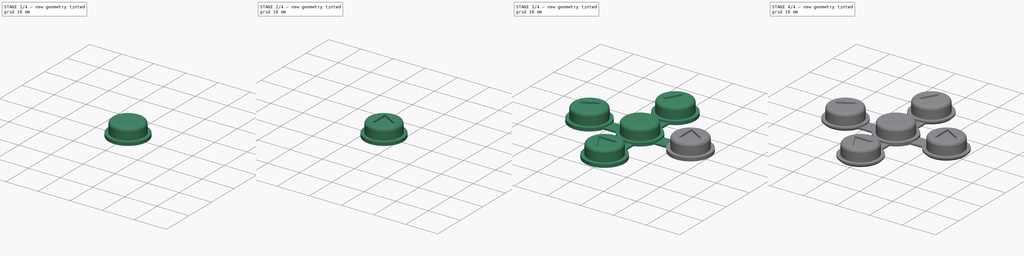
[diagram: build sequence overview — one tinted view per stage of 4, left to right]
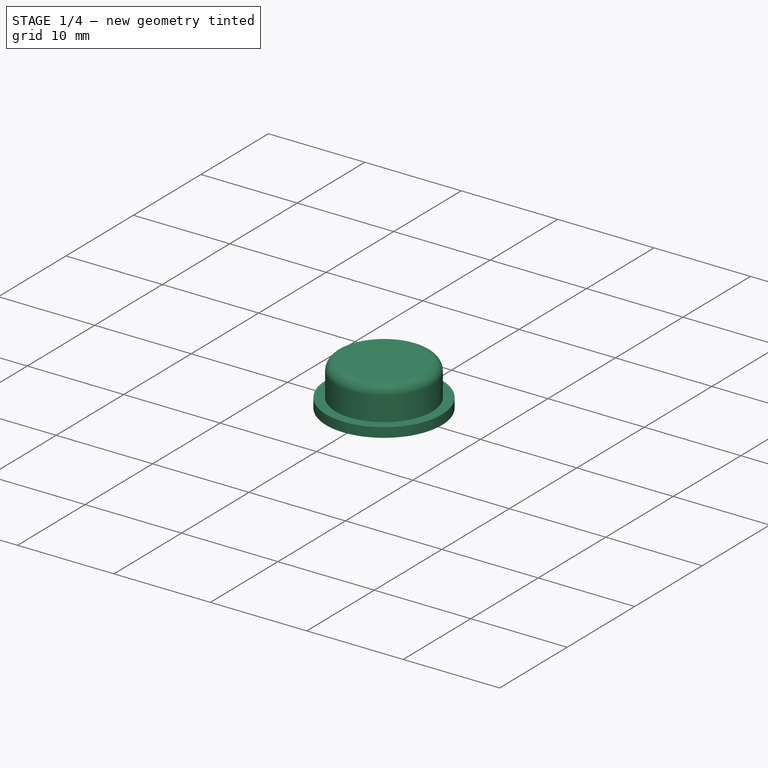
[diagram: stage 1 of 4 — iso view after this stage's code; geometry added in this stage tinted green]
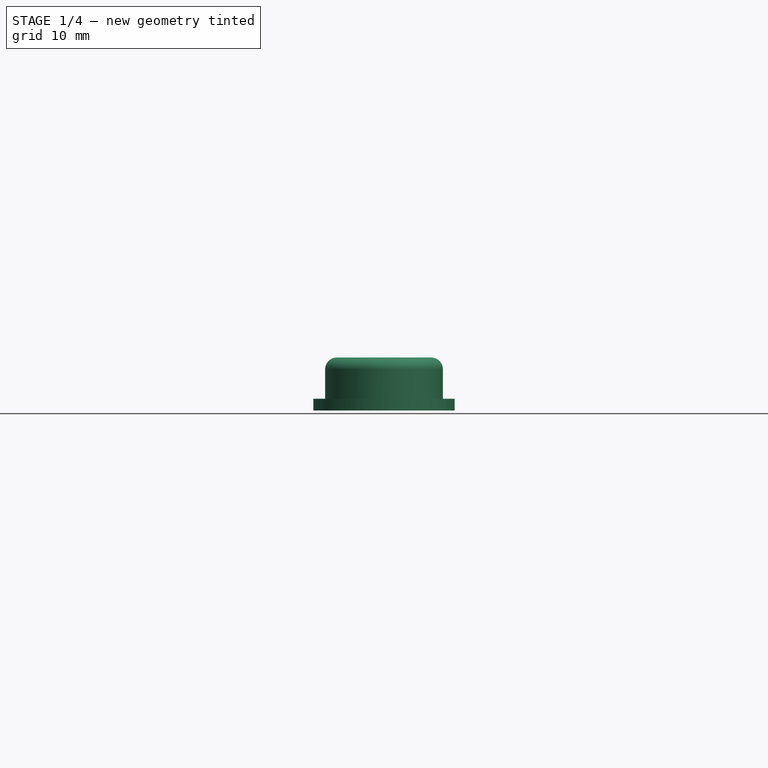
[diagram: stage 1 of 4 — front view after this stage's code; geometry added in this stage tinted green]
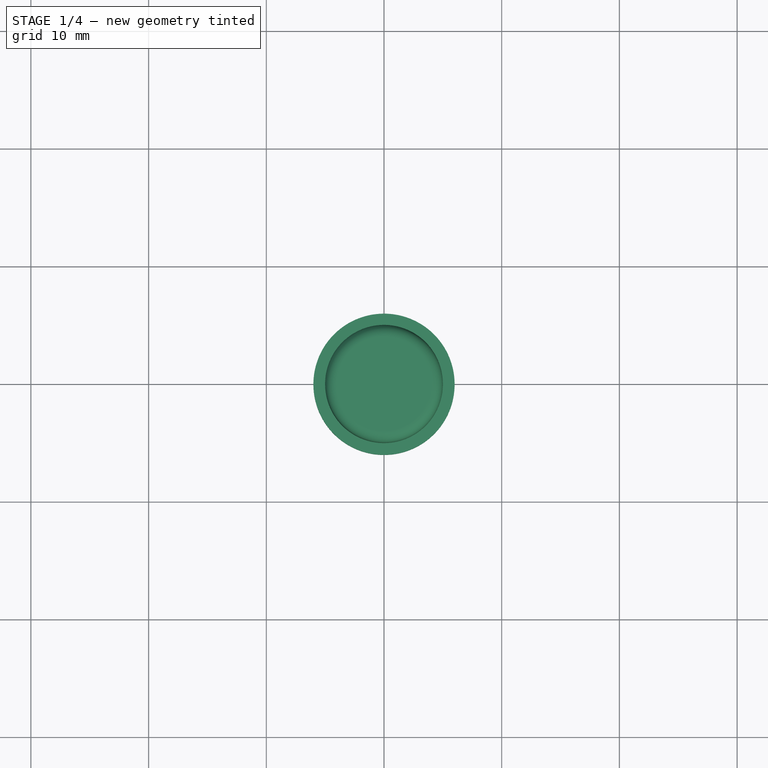
[diagram: stage 1 of 4 — top view after this stage's code; geometry added in this stage tinted green]
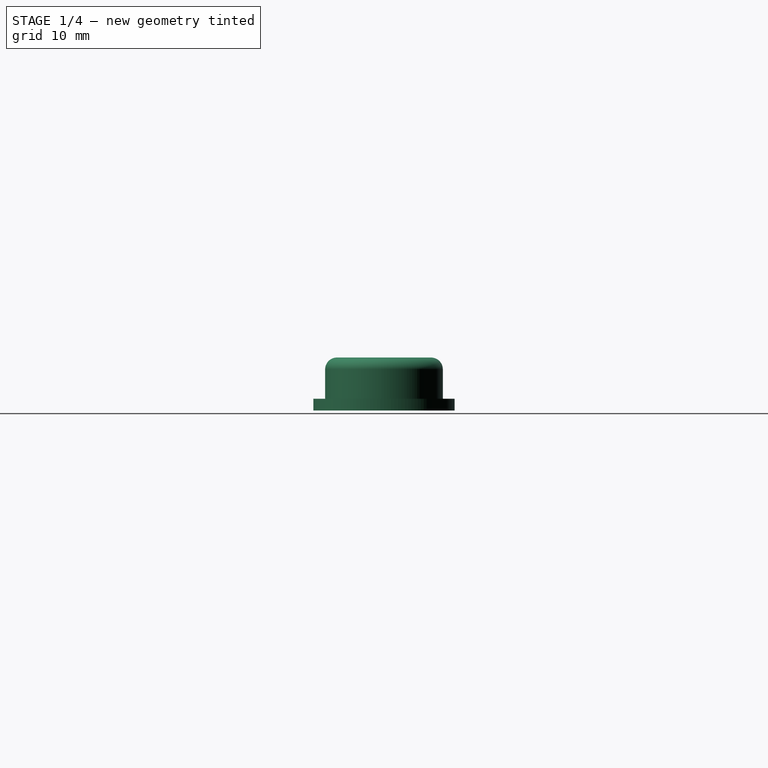
[diagram: stage 1 of 4 — right view after this stage's code; geometry added in this stage tinted green]
FCSTD DOCUMENT  (FreeCAD 0.14R3692 (Git))
Label: keypad-buttons
License: The MIT License
LicenseURL: http://opensource.org/licenses/MIT
objects: Part::FeaturePython×4, Part::Cylinder×2, Part::Box×2, Part::MultiFuse×2, Part::Feature×1, Part::Fillet×1, Sketcher::SketchObject×1, PartDesign::Pocket×1, Part::Chamfer×1
note: 16 computed .brp shape members not serialized (recipe doc carries the construction recipe); baked Part::Feature solids carry a one-line shape summary decoded from their .brp

FEATURE [Part::Feature] Part__Feature  label="keypad-case"
  shape: bbox 50.26 x 47.72 x 10 mm, 56 faces (baked)
FEATURE [Part::Cylinder] Cylinder  label="button-body-cylinder"
  Angle = 360
  Height = 4.5
  Placement = pos=(0,0,8) rot=(0,0,1;0rad)
  Radius = 5
FEATURE [Part::Cylinder] Cylinder001  label="button-base-cylinder"
  Angle = 360
  Height = 1
  Placement = pos=(0,0,8) rot=(0,0,1;0rad)
  Radius = 6
FEATURE [Part::Fillet] Fillet  label="button-body-fillet"
  Base = -> Cylinder
  Edges = 1 edges r=1: [Edge1]
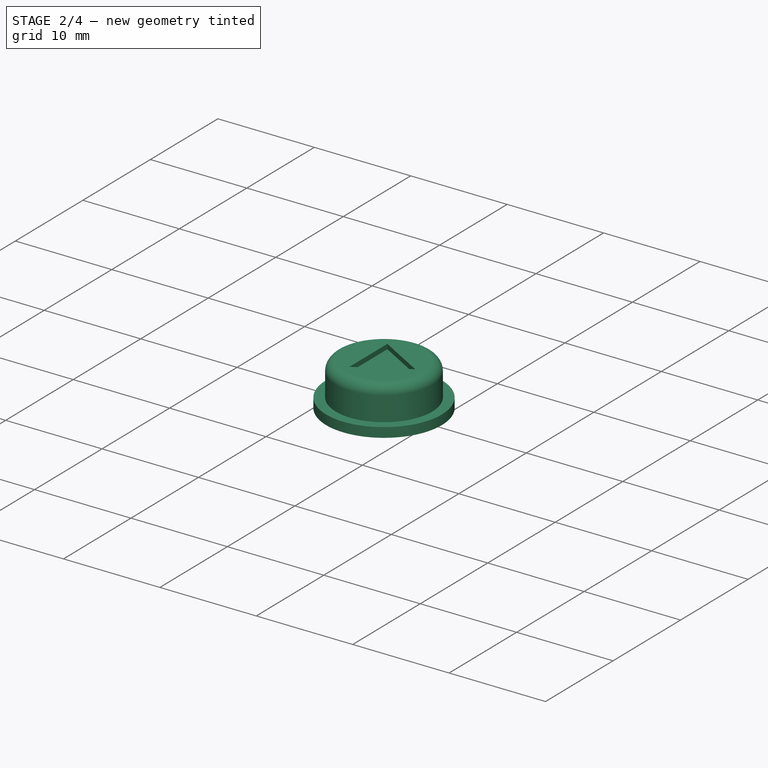
[diagram: stage 2 of 4 — iso view after this stage's code; geometry added in this stage tinted green]
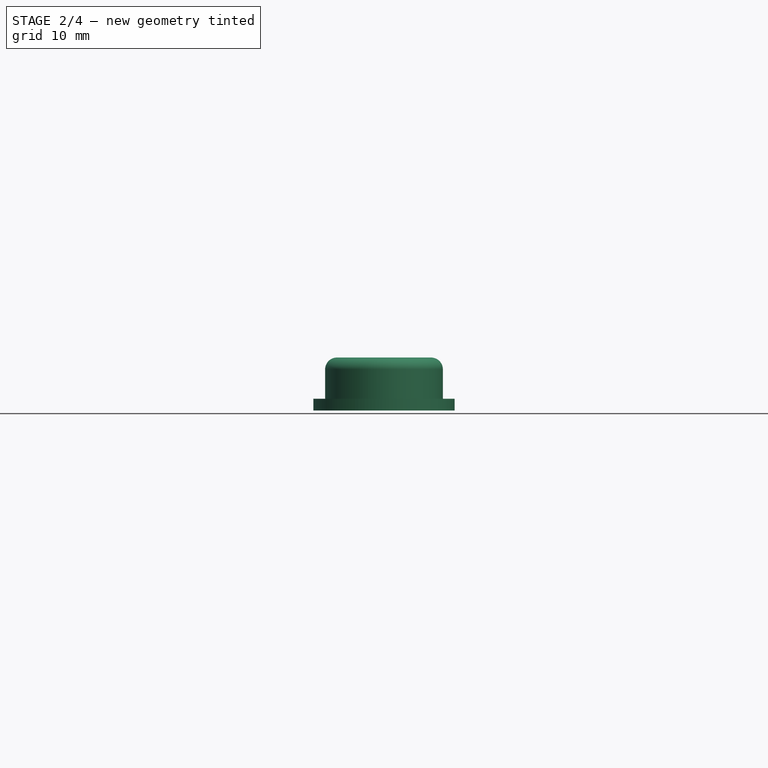
[diagram: stage 2 of 4 — front view after this stage's code; geometry added in this stage tinted green]
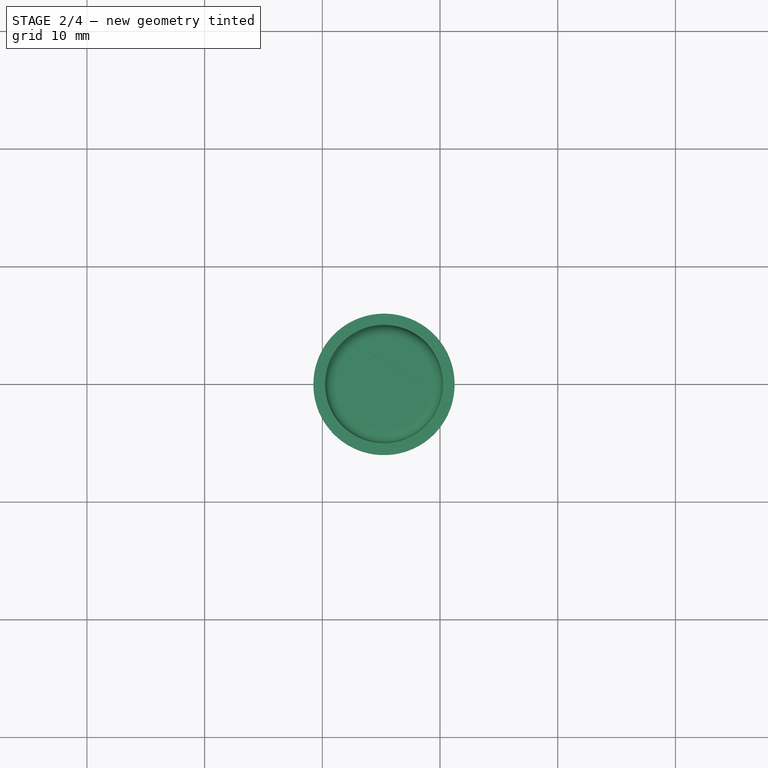
[diagram: stage 2 of 4 — top view after this stage's code; geometry added in this stage tinted green]
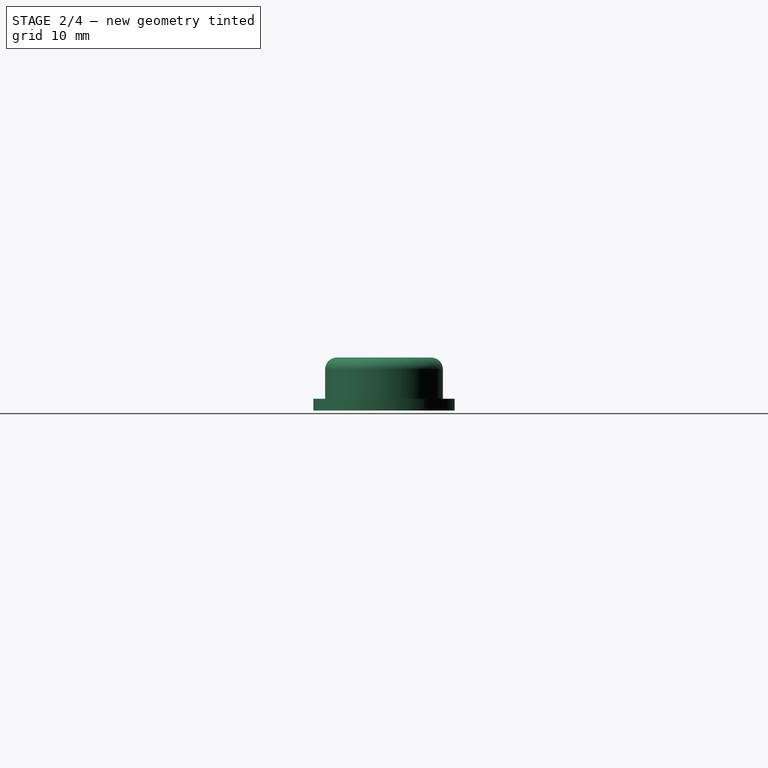
[diagram: stage 2 of 4 — right view after this stage's code; geometry added in this stage tinted green]
FEATURE [Part::MultiFuse] Fusion  label="button-fusion"
  Shapes = -> [Cylinder001,Fillet]
FEATURE [Part::FeaturePython] Clone  label="button-right"  # Draft clone (typed FeaturePython)
  Objects = -> [Fusion]
  Placement = pos=(15.24,0,0) rot=(0,0,1;0rad)
  Scale = (1,1,1)
FEATURE [Sketcher::SketchObject] Sketch  label="arrow-sketch"
  Placement = pos=(15.24,0,12.5) rot=(0,0,1;0rad)
  Support = -> Clone [Face3]
  sketch-geometry (4):
    g0: Circle [constr] CenterX=0 CenterY=0 CenterZ=0 NormalX=0 NormalY=0 NormalZ=1 Radius=3.25
    g1: LineSegment StartX=-1.625 StartY=2.81458 StartZ=0 EndX=-1.625 EndY=-2.81458 EndZ=0
    g2: LineSegment StartX=-1.625 StartY=-2.81458 StartZ=0 EndX=3.25 EndY=0 EndZ=0
    g3: LineSegment StartX=3.25 StartY=0 StartZ=0 EndX=-1.625 EndY=2.81458 EndZ=0
  constraints (11):
    c: Coincident(g0,g-1)
    c: Radius(g0) = 3.25
    c: Coincident(g1,g2)
    c: Coincident(g2,g3)
    c: Coincident(g3,g1)
    c: PointOnObject(g1,g0)
    c: PointOnObject(g2,g0)
    c: PointOnObject(g1,g0)
    c: Vertical(g1)
    c: Equal(g2,g3)
    c: Equal(g3,g1)
FEATURE [PartDesign::Pocket] Pocket  label="arrot-pocket"
  Length = 0.5
  Placement = pos=(15.24,0,0) rot=(0,0,1;0rad)
  Sketch = -> Sketch
  Type = 0
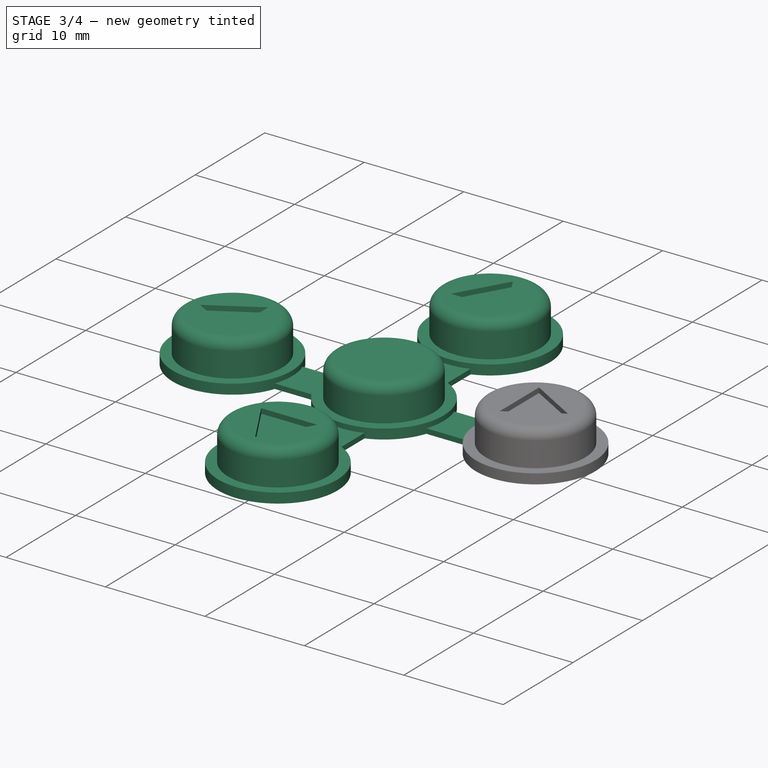
[diagram: stage 3 of 4 — iso view after this stage's code; geometry added in this stage tinted green]
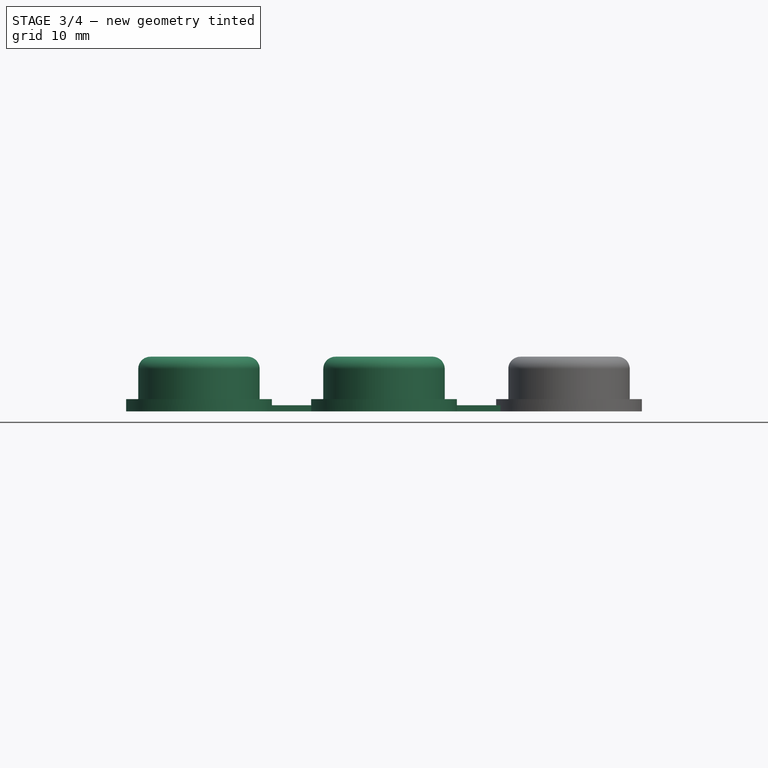
[diagram: stage 3 of 4 — front view after this stage's code; geometry added in this stage tinted green]
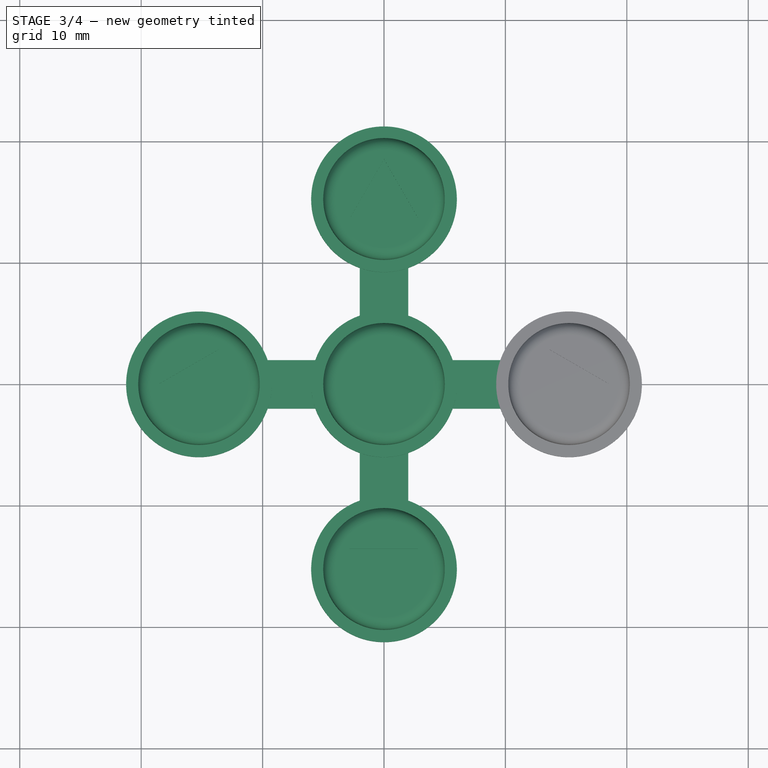
[diagram: stage 3 of 4 — top view after this stage's code; geometry added in this stage tinted green]
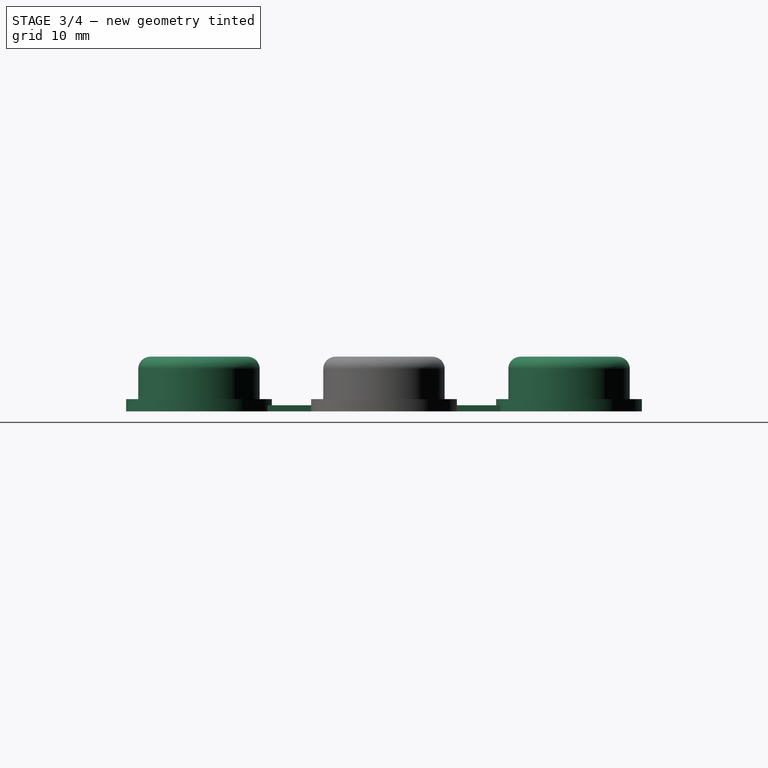
[diagram: stage 3 of 4 — right view after this stage's code; geometry added in this stage tinted green]
FEATURE [Part::Box] Box  label="buttons-left-right-union-cube"
  Height = 0.5
  Length = 30.48
  Placement = pos=(-15.24,-2,8) rot=(0,0,1;0rad)
  Width = 4
FEATURE [Part::Box] Box001  label="buttons-forward-backward-union-cube"
  Height = 0.5
  Length = 30.48
  Placement = pos=(2,-15.24,8) rot=(0,0,1;1.5708rad)
  Width = 4
FEATURE [Part::FeaturePython] Array  label="buttons-array"  # Draft array (typed FeaturePython)
  Angle = 360
  ArrayType = 1
  Axis = (0,0,1)
  Base = -> Pocket
  Center = (0,0,0)
  IntervalX = (1,0,0)
  IntervalY = (0,1,0)
  IntervalZ = (0,0,1)
  NumberPolar = 4
  NumberX = 2
  NumberY = 2
  NumberZ = 1
FEATURE [Part::MultiFuse] Fusion001  label="buttons-fusion"
  Shapes = -> [Array,Fusion,Box001,Box]
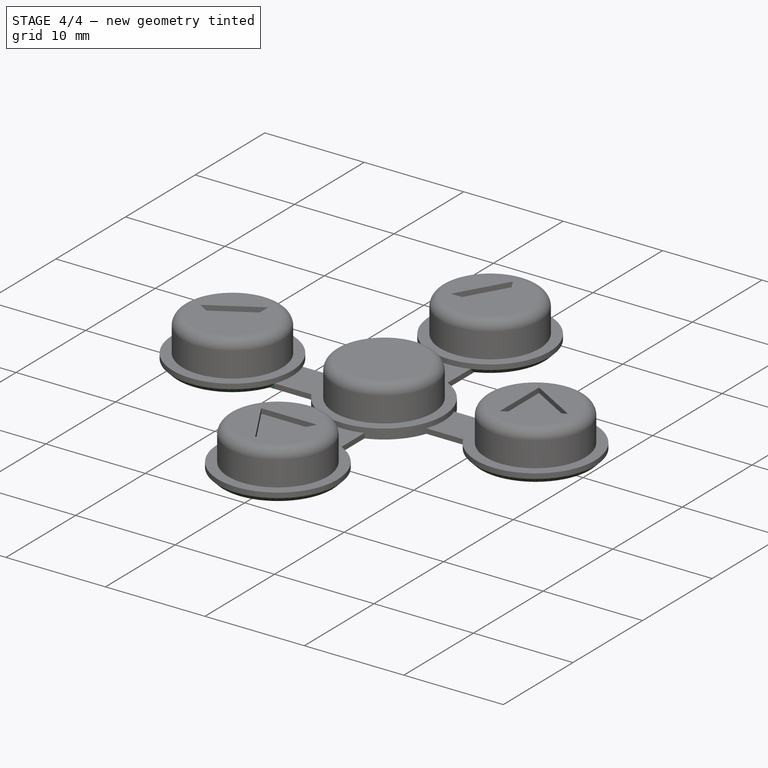
[diagram: stage 4 of 4 — iso view after this stage's code; geometry added in this stage tinted green]
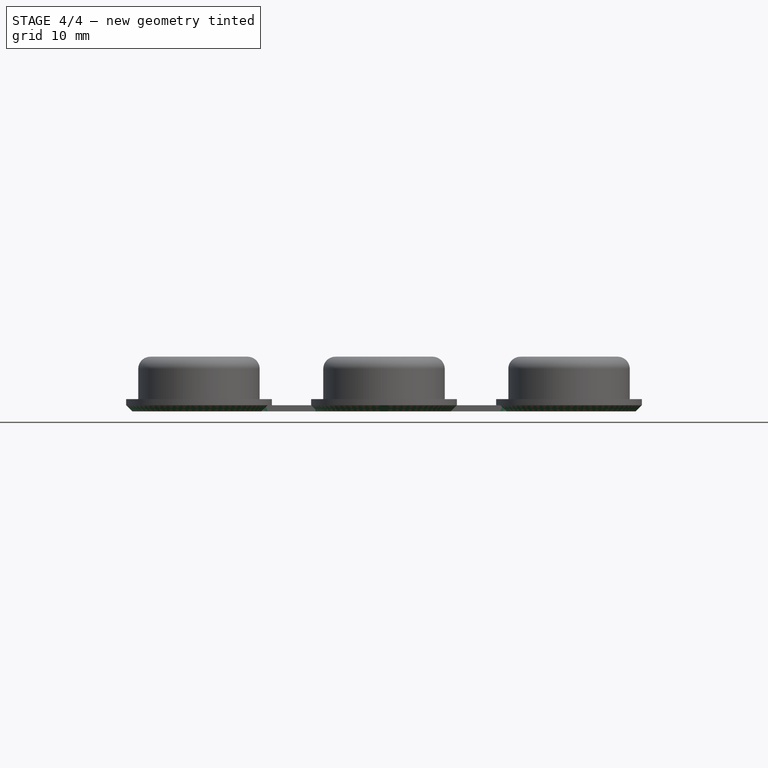
[diagram: stage 4 of 4 — front view after this stage's code; geometry added in this stage tinted green]
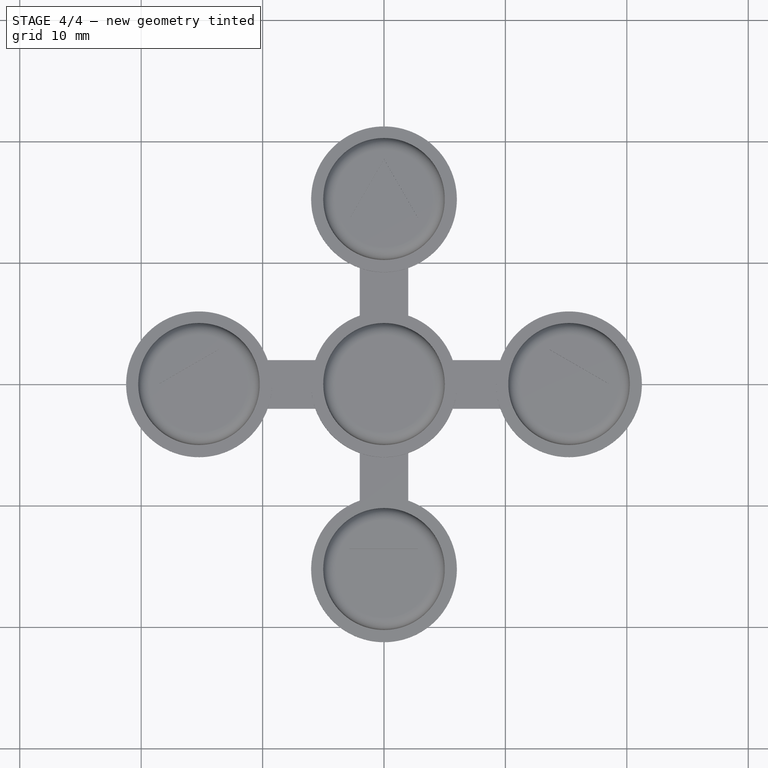
[diagram: stage 4 of 4 — top view after this stage's code; geometry added in this stage tinted green]
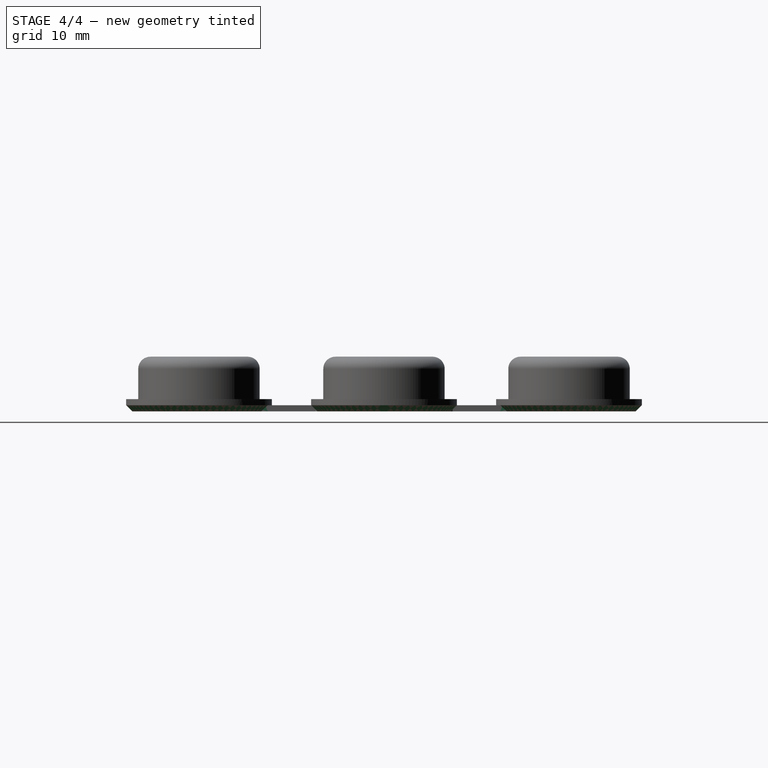
[diagram: stage 4 of 4 — right view after this stage's code; geometry added in this stage tinted green]
FEATURE [Part::FeaturePython] Clone001  label="keypad-buttons"  # Draft clone (typed FeaturePython)
  Objects = -> [Fusion001]
  Scale = (1,1,1)
FEATURE [Part::Chamfer] Chamfer  label="printing-chamfer"
  Base = -> Clone001
  Edges = 8 edges r=0.5: [Edge14,Edge16,Edge69,Edge72,Edge73,Edge76,Edge77,Edge80]
FEATURE [Part::FeaturePython] Clone002  label="keypad-buttons (printing)"  # Draft clone (typed FeaturePython)
  Objects = -> [Chamfer]
  Scale = (1,1,1)
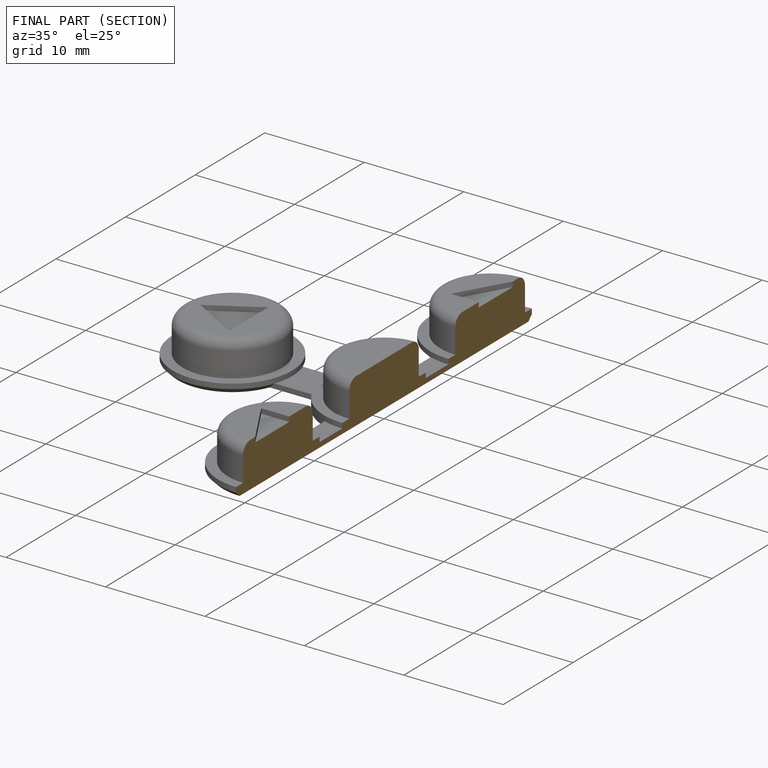
[diagram: finished part — half-section view (interior)]
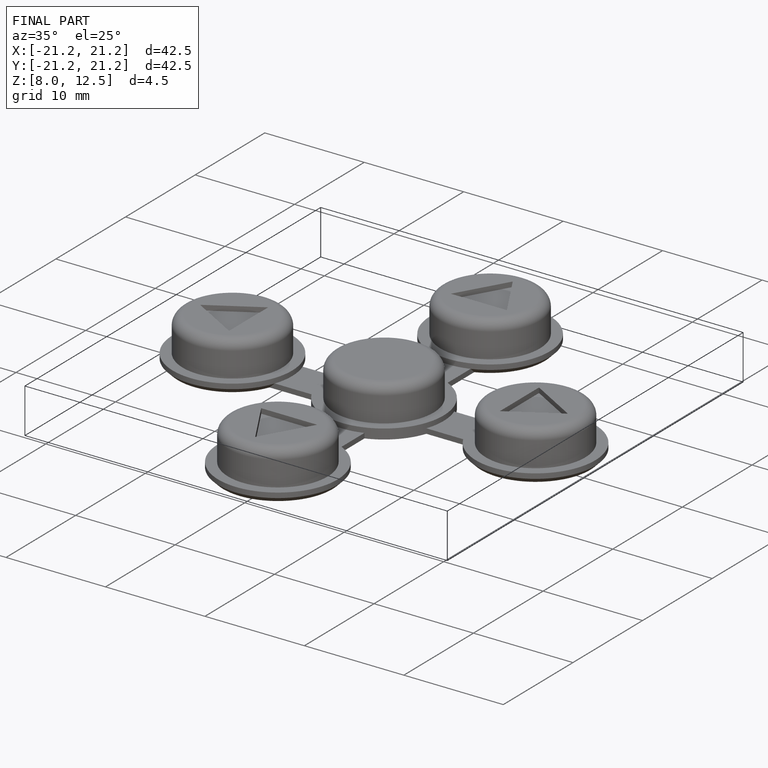
[diagram: finished part — iso view with bounding-box wireframe]
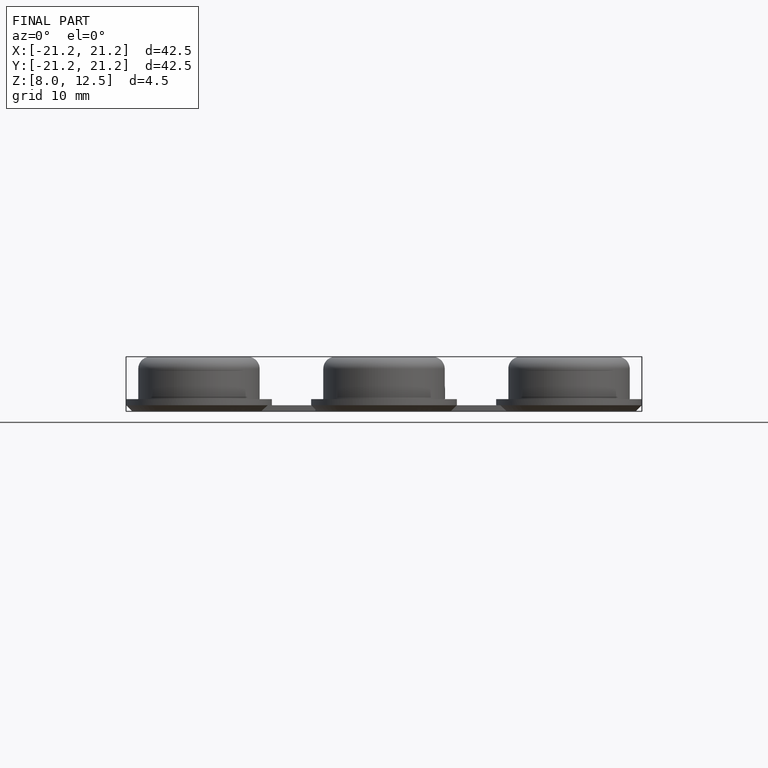
[diagram: finished part — front view with bounding-box wireframe]
